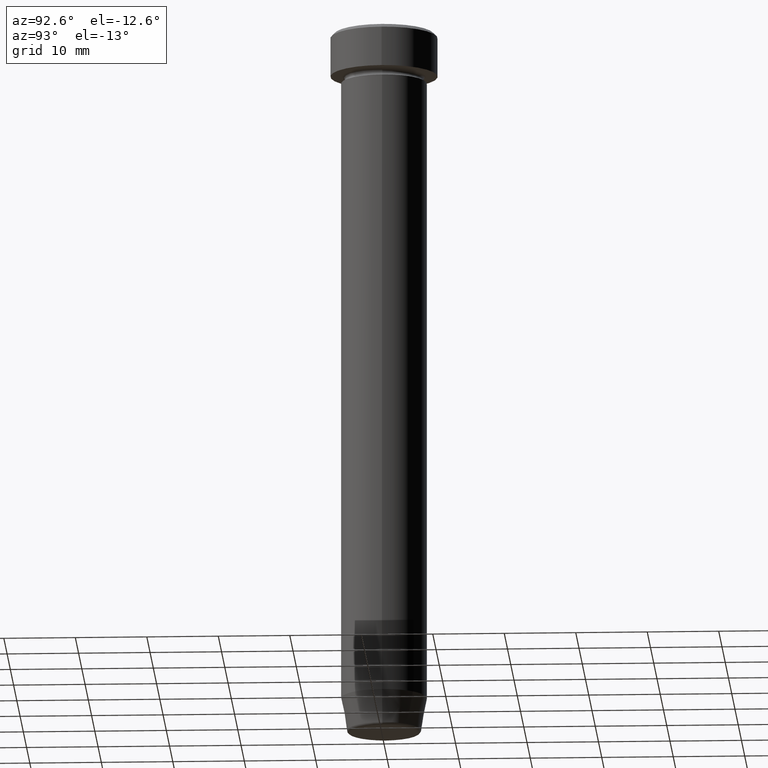
[diagram: clean part render]
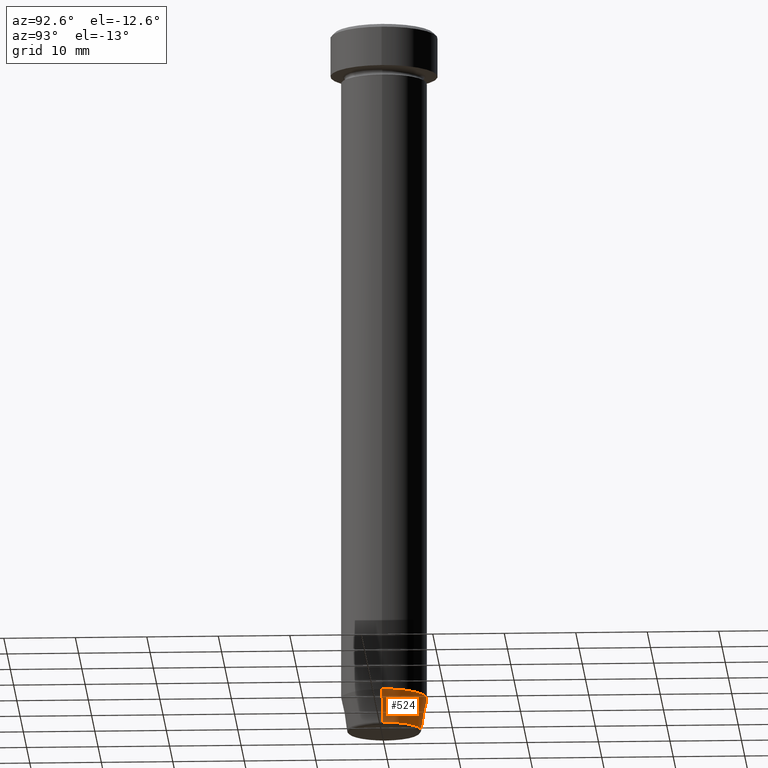
[diagram: same view with one face highlighted and labeled with its STEP entity id]
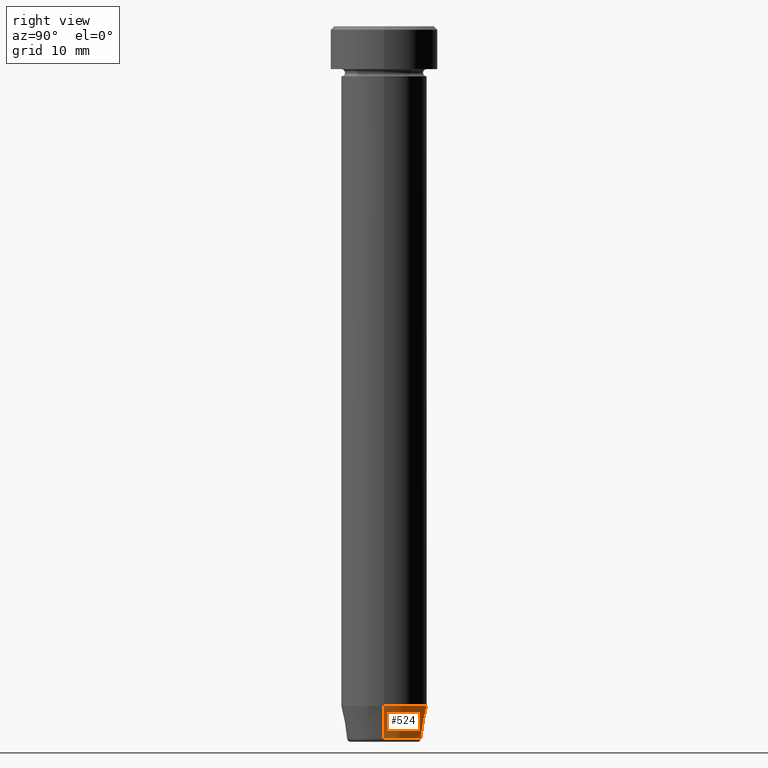
[diagram: same view with one face highlighted and labeled with its STEP entity id]
A machine part, auxiliary view. The second image highlights one B-rep face of the part: STEP entity #524.
A second angle (right view) of the same face is appended — the face is thin or edge-on in the first view.
In plain terms, the highlighted conical surface has half-angle 10 deg.
Its self-contained STEP definition (entity closure, byte-faithful):
#8 = DIRECTION ( 'NONE',  ( -0.000000000000000000, -0.000000000000000000, 1.000000000000000000 ) ) ;
#9 = DIRECTION ( 'NONE',  ( -0.000000000000000000, -0.000000000000000000, 1.000000000000000000 ) ) ;
#10 = CARTESIAN_POINT ( 'NONE',  ( 0.000000000000000000, 0.000000000000000000, -100.0000000000000000 ) ) ;
#17 = CARTESIAN_POINT ( 'NONE',  ( 6.000000000000000000, 0.000000000000000000, -95.00000000000000000 ) ) ;
#19 = CONICAL_SURFACE ( 'NONE', #336, 5.118365096457672792, 0.1745329251994331976 ) ;
#29 = DIRECTION ( 'NONE',  ( -0.000000000000000000, -0.000000000000000000, 1.000000000000000000 ) ) ;
#43 = AXIS2_PLACEMENT_3D ( 'NONE', #261, #29, #528 ) ;
#50 = VERTEX_POINT ( 'NONE', #62 ) ;
#62 = CARTESIAN_POINT ( 'NONE',  ( 5.191219157375138060, 0.000000000000000000, -99.58682408883346682 ) ) ;
#63 = CIRCLE ( 'NONE', #320, 5.191219157375138060 ) ;
#70 = VERTEX_POINT ( 'NONE', #95 ) ;
#71 = EDGE_CURVE ( 'NONE', #50, #461, #63, .T. ) ;
#90 = ORIENTED_EDGE ( 'NONE', *, *, #71, .T. ) ;
#95 = CARTESIAN_POINT ( 'NONE',  ( -6.000000000000000000, 7.347880794884119736E-16, -95.00000000000000000 ) ) ;
#96 = DIRECTION ( 'NONE',  ( 1.000000000000000000, 0.000000000000000000, 0.000000000000000000 ) ) ;
#97 = ORIENTED_EDGE ( 'NONE', *, *, #490, .F. ) ;
#122 = DIRECTION ( 'NONE',  ( -0.1736481776669306087, 2.126576849575774688E-17, 0.9848077530122081313 ) ) ;
#140 = CIRCLE ( 'NONE', #43, 6.000000000000000000 ) ;
#174 = EDGE_CURVE ( 'NONE', #184, #70, #140, .T. ) ;
#184 = VERTEX_POINT ( 'NONE', #17 ) ;
#188 = VECTOR ( 'NONE', #511, 999.9999999999998863 ) ;
#194 = CARTESIAN_POINT ( 'NONE',  ( 0.000000000000000000, 0.000000000000000000, -99.58682408883346682 ) ) ;
#206 = EDGE_CURVE ( 'NONE', #461, #70, #520, .T. ) ;
#261 = CARTESIAN_POINT ( 'NONE',  ( 0.000000000000000000, 0.000000000000000000, -95.00000000000000000 ) ) ;
#320 = AXIS2_PLACEMENT_3D ( 'NONE', #194, #9, #325 ) ;
#325 = DIRECTION ( 'NONE',  ( -1.000000000000000000, 0.000000000000000000, 0.000000000000000000 ) ) ;
#326 = LINE ( 'NONE', #329, #188 ) ;
#329 = CARTESIAN_POINT ( 'NONE',  ( 5.118365096457672792, 0.000000000000000000, -100.0000000000000000 ) ) ;
#336 = AXIS2_PLACEMENT_3D ( 'NONE', #10, #8, #96 ) ;
#365 = FACE_OUTER_BOUND ( 'NONE', #434, .T. ) ;
#413 = ORIENTED_EDGE ( 'NONE', *, *, #206, .T. ) ;
#434 = EDGE_LOOP ( 'NONE', ( #90, #413, #509, #97 ) ) ;
#461 = VERTEX_POINT ( 'NONE', #462 ) ;
#462 = CARTESIAN_POINT ( 'NONE',  ( -5.191219157375138060, 6.852645359818002966E-16, -99.58682408883346682 ) ) ;
#468 = VECTOR ( 'NONE', #122, 999.9999999999998863 ) ;
#490 = EDGE_CURVE ( 'NONE', #50, #184, #326, .T. ) ;
#509 = ORIENTED_EDGE ( 'NONE', *, *, #174, .F. ) ;
#511 = DIRECTION ( 'NONE',  ( 0.1736481776669306087, 0.000000000000000000, 0.9848077530122081313 ) ) ;
#520 = LINE ( 'NONE', #567, #468 ) ;
#524 = ADVANCED_FACE ( 'NONE', ( #365 ), #19, .T. ) ;
#528 = DIRECTION ( 'NONE',  ( 1.000000000000000000, 0.000000000000000000, 0.000000000000000000 ) ) ;
#567 = CARTESIAN_POINT ( 'NONE',  ( -5.118365096457672792, 6.268189432244423169E-16, -100.0000000000000000 ) ) ;